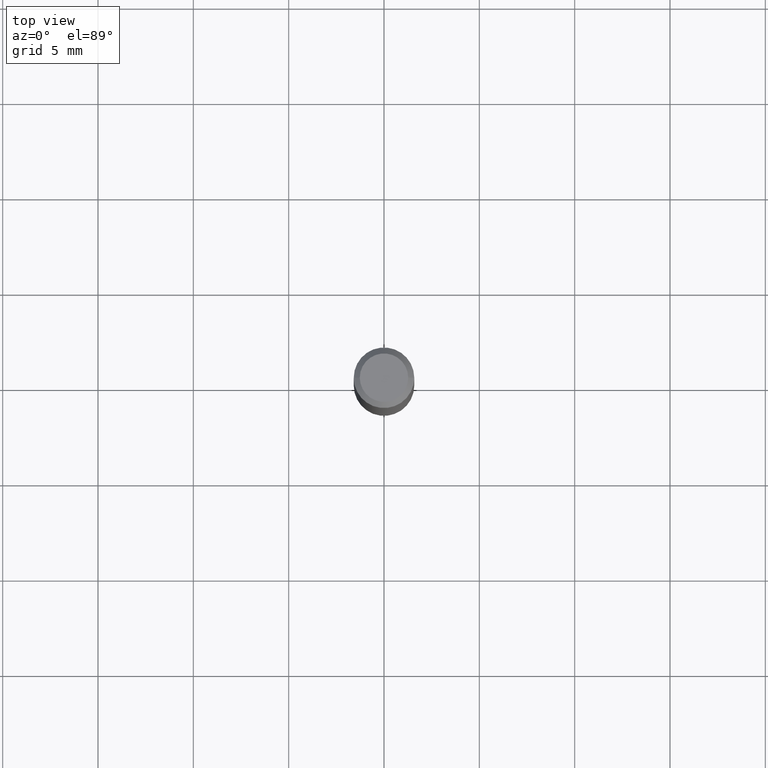
[diagram: clean part render]
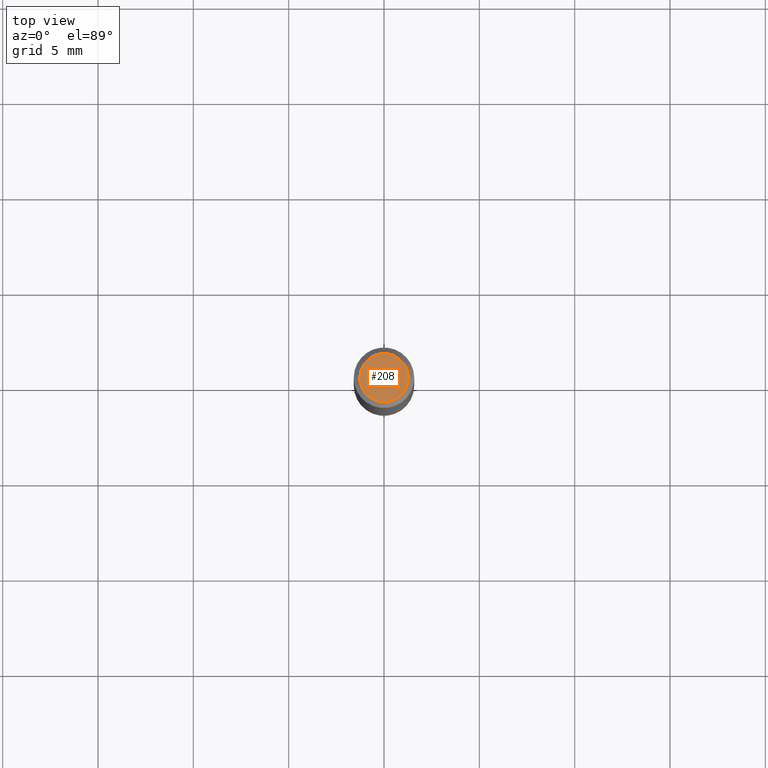
[diagram: same view with one face highlighted and labeled with its STEP entity id]
A machine part, top view. The second image highlights one B-rep face of the part: STEP entity #208.
In plain terms, the highlighted planar face has unit normal (0, -0, -1).
Its self-contained STEP definition (entity closure, byte-faithful):
#6 = DIRECTION ( 'NONE',  ( 1.000000000000000000, -6.982962677686265922E-15, 4.876194921942043128E-29 ) ) ;
#28 = DIRECTION ( 'NONE',  ( 1.000000000000000000, -6.982962677686265922E-15, 4.876194921942043128E-29 ) ) ;
#29 = AXIS2_PLACEMENT_3D ( 'NONE', #320, #173, #296 ) ;
#71 = ORIENTED_EDGE ( 'NONE', *, *, #78, .T. ) ;
#78 = EDGE_CURVE ( 'NONE', #406, #307, #427, .T. ) ;
#102 = AXIS2_PLACEMENT_3D ( 'NONE', #416, #449, #6 ) ;
#140 = EDGE_LOOP ( 'NONE', ( #218, #71 ) ) ;
#173 = DIRECTION ( 'NONE',  ( 2.438088387897960049E-29, -3.491481338843145188E-15, -1.000000000000000000 ) ) ;
#208 = ADVANCED_FACE ( 'NONE', ( #372 ), #482, .F. ) ;
#218 = ORIENTED_EDGE ( 'NONE', *, *, #391, .T. ) ;
#227 = AXIS2_PLACEMENT_3D ( 'NONE', #486, #366, #28 ) ;
#296 = DIRECTION ( 'NONE',  ( -1.000000000000000000, 6.982962677686265922E-15, -4.876176775795935793E-29 ) ) ;
#307 = VERTEX_POINT ( 'NONE', #447 ) ;
#320 = CARTESIAN_POINT ( 'NONE',  ( -4.132873053354867254E-48, 5.900647395337818946E-34, 1.690012582823346072E-19 ) ) ;
#338 = CARTESIAN_POINT ( 'NONE',  ( 0.04999999999999999584, -4.077247707424184212E-16, 3.380025165673154903E-19 ) ) ;
#366 = DIRECTION ( 'NONE',  ( -2.445468806185136597E-29, 3.491481338843145583E-15, 1.000000000000000000 ) ) ;
#372 = FACE_OUTER_BOUND ( 'NONE', #140, .T. ) ;
#391 = EDGE_CURVE ( 'NONE', #307, #406, #393, .T. ) ;
#393 = CIRCLE ( 'NONE', #102, 0.04999999999999999584 ) ;
#406 = VERTEX_POINT ( 'NONE', #338 ) ;
#416 = CARTESIAN_POINT ( 'NONE',  ( -8.265746106709734507E-48, 1.180129479067563789E-33, 3.380025165646692144E-19 ) ) ;
#427 = CIRCLE ( 'NONE', #227, 0.04999999999999999584 ) ;
#447 = CARTESIAN_POINT ( 'NONE',  ( -0.04999999999999999584, 3.709698922520826725E-16, 3.380025165621512536E-19 ) ) ;
#449 = DIRECTION ( 'NONE',  ( -2.445468806185136597E-29, 3.491481338843145583E-15, 1.000000000000000000 ) ) ;
#482 = PLANE ( 'NONE',  #29 ) ;
#486 = CARTESIAN_POINT ( 'NONE',  ( -8.265746106709734507E-48, 1.180129479067563789E-33, 3.380025165646692144E-19 ) ) ;